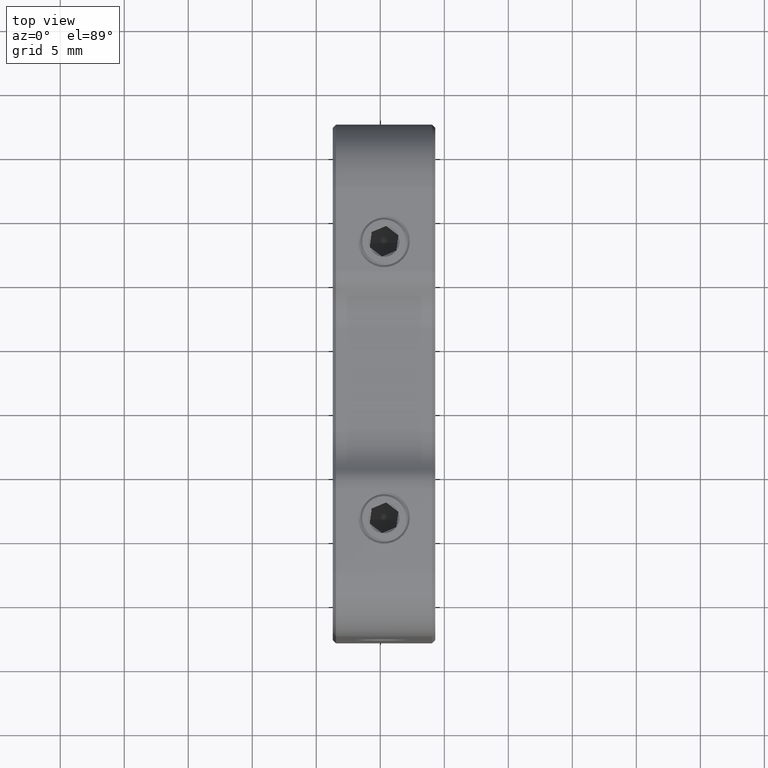
[diagram: clean part render]
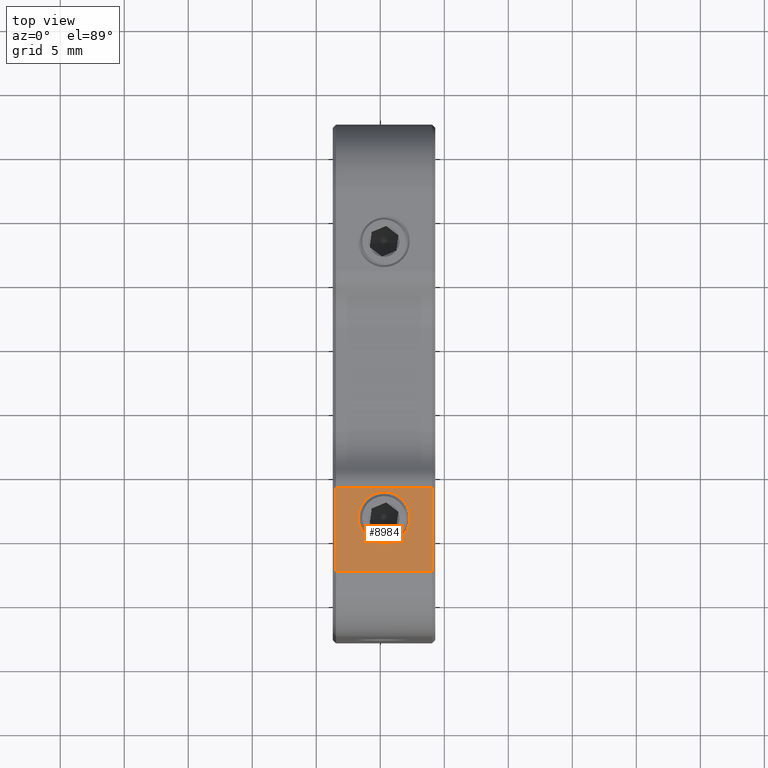
[diagram: same view with one face highlighted and labeled with its STEP entity id]
A machine part, top view. The second image highlights one B-rep face of the part: STEP entity #8984.
In plain terms, the highlighted planar face has unit normal (0, 0, -1).
Its self-contained STEP definition (entity closure, byte-faithful):
#106 = ORIENTED_EDGE ( 'NONE', *, *, #7556, .T. ) ;
#608 = CARTESIAN_POINT ( 'NONE',  ( -10.95960063692994879, -6.362834731590468529, 60.00000000000001421 ) ) ;
#691 = CARTESIAN_POINT ( 'NONE',  ( -10.95960063692994879, -6.362834731590468529, 60.00000000000001421 ) ) ;
#767 = CARTESIAN_POINT ( 'NONE',  ( -14.70960063692994879, -8.690698776590892294, 60.00000000000001421 ) ) ;
#812 = ORIENTED_EDGE ( 'NONE', *, *, #855, .F. ) ;
#855 = EDGE_CURVE ( 'NONE', #4478, #6696, #5171, .T. ) ;
#917 = CARTESIAN_POINT ( 'NONE',  ( -12.68460063692995021, -8.690698776590892294, 60.00000000000001421 ) ) ;
#1206 = CARTESIAN_POINT ( 'NONE',  ( -18.45960063692994879, -6.362834731590468529, 60.00000000000001421 ) ) ;
#1468 = DIRECTION ( 'NONE',  ( 0.000000000000000000, 1.000000000000000000, 8.673617379884035472E-17 ) ) ;
#1488 = CARTESIAN_POINT ( 'NONE',  ( -10.70960063692994879, -12.89069877659089691, 60.00000000000001421 ) ) ;
#1576 = ORIENTED_EDGE ( 'NONE', *, *, #3497, .T. ) ;
#1652 = CARTESIAN_POINT ( 'NONE',  ( -16.73460063692994737, -8.690698776590892294, 60.00000000000001421 ) ) ;
#1697 = DIRECTION ( 'NONE',  ( 0.000000000000000000, 8.673617379884035472E-17, -1.000000000000000000 ) ) ;
#1858 = FACE_BOUND ( 'NONE', #7263, .T. ) ;
#1932 = VERTEX_POINT ( 'NONE', #608 ) ;
#2944 = AXIS2_PLACEMENT_3D ( 'NONE', #3238, #1697, #4032 ) ;
#3154 = LINE ( 'NONE', #1488, #8369 ) ;
#3171 = DIRECTION ( 'NONE',  ( -0.000000000000000000, -0.000000000000000000, 1.000000000000000000 ) ) ;
#3238 = CARTESIAN_POINT ( 'NONE',  ( -10.70960063692994879, 22.10930122340910842, 60.00000000000001421 ) ) ;
#3259 = DIRECTION ( 'NONE',  ( 1.000000000000000000, 0.000000000000000000, 0.000000000000000000 ) ) ;
#3409 = LINE ( 'NONE', #691, #6186 ) ;
#3497 = EDGE_CURVE ( 'NONE', #6374, #1932, #3409, .T. ) ;
#3517 = DIRECTION ( 'NONE',  ( -1.000000000000000000, 0.000000000000000000, 0.000000000000000000 ) ) ;
#3578 = DIRECTION ( 'NONE',  ( -0.000000000000000000, -0.000000000000000000, 1.000000000000000000 ) ) ;
#4014 = LINE ( 'NONE', #7393, #7530 ) ;
#4032 = DIRECTION ( 'NONE',  ( 0.000000000000000000, 1.000000000000000000, 8.673617379884035472E-17 ) ) ;
#4082 = ORIENTED_EDGE ( 'NONE', *, *, #5716, .T. ) ;
#4107 = AXIS2_PLACEMENT_3D ( 'NONE', #767, #3171, #3259 ) ;
#4478 = VERTEX_POINT ( 'NONE', #917 ) ;
#4865 = CARTESIAN_POINT ( 'NONE',  ( -18.45960063692994879, 22.10930122340910842, 60.00000000000001421 ) ) ;
#5171 = CIRCLE ( 'NONE', #8479, 2.024999999999999023 ) ;
#5314 = LINE ( 'NONE', #4865, #6409 ) ;
#5716 = EDGE_CURVE ( 'NONE', #1932, #7454, #4014, .T. ) ;
#6186 = VECTOR ( 'NONE', #1468, 1000.000000000000000 ) ;
#6204 = DIRECTION ( 'NONE',  ( 1.000000000000000000, -0.000000000000000000, -0.000000000000000000 ) ) ;
#6333 = PLANE ( 'NONE',  #2944 ) ;
#6334 = DIRECTION ( 'NONE',  ( 0.000000000000000000, -1.000000000000000000, -8.673617379884035472E-17 ) ) ;
#6374 = VERTEX_POINT ( 'NONE', #9582 ) ;
#6405 = EDGE_CURVE ( 'NONE', #7454, #6884, #5314, .T. ) ;
#6409 = VECTOR ( 'NONE', #6334, 1000.000000000000000 ) ;
#6573 = FACE_OUTER_BOUND ( 'NONE', #10138, .T. ) ;
#6696 = VERTEX_POINT ( 'NONE', #1652 ) ;
#6746 = CARTESIAN_POINT ( 'NONE',  ( -18.45960063692994879, -12.89069877659089691, 60.00000000000001421 ) ) ;
#6884 = VERTEX_POINT ( 'NONE', #6746 ) ;
#6955 = ORIENTED_EDGE ( 'NONE', *, *, #8217, .F. ) ;
#7111 = ORIENTED_EDGE ( 'NONE', *, *, #6405, .T. ) ;
#7263 = EDGE_LOOP ( 'NONE', ( #812, #6955 ) ) ;
#7393 = CARTESIAN_POINT ( 'NONE',  ( -10.70960063692994879, -6.362834731590468529, 60.00000000000001421 ) ) ;
#7454 = VERTEX_POINT ( 'NONE', #1206 ) ;
#7479 = CARTESIAN_POINT ( 'NONE',  ( -14.70960063692994879, -8.690698776590892294, 60.00000000000001421 ) ) ;
#7530 = VECTOR ( 'NONE', #3517, 1000.000000000000000 ) ;
#7556 = EDGE_CURVE ( 'NONE', #6884, #6374, #3154, .T. ) ;
#8083 = CIRCLE ( 'NONE', #4107, 2.024999999999999023 ) ;
#8217 = EDGE_CURVE ( 'NONE', #6696, #4478, #8083, .T. ) ;
#8369 = VECTOR ( 'NONE', #6204, 1000.000000000000000 ) ;
#8479 = AXIS2_PLACEMENT_3D ( 'NONE', #7479, #3578, #9002 ) ;
#8984 = ADVANCED_FACE ( 'NONE', ( #1858, #6573 ), #6333, .F. ) ;
#9002 = DIRECTION ( 'NONE',  ( 1.000000000000000000, 0.000000000000000000, 0.000000000000000000 ) ) ;
#9582 = CARTESIAN_POINT ( 'NONE',  ( -10.95960063692994879, -12.89069877659089691, 60.00000000000001421 ) ) ;
#10138 = EDGE_LOOP ( 'NONE', ( #4082, #7111, #106, #1576 ) ) ;